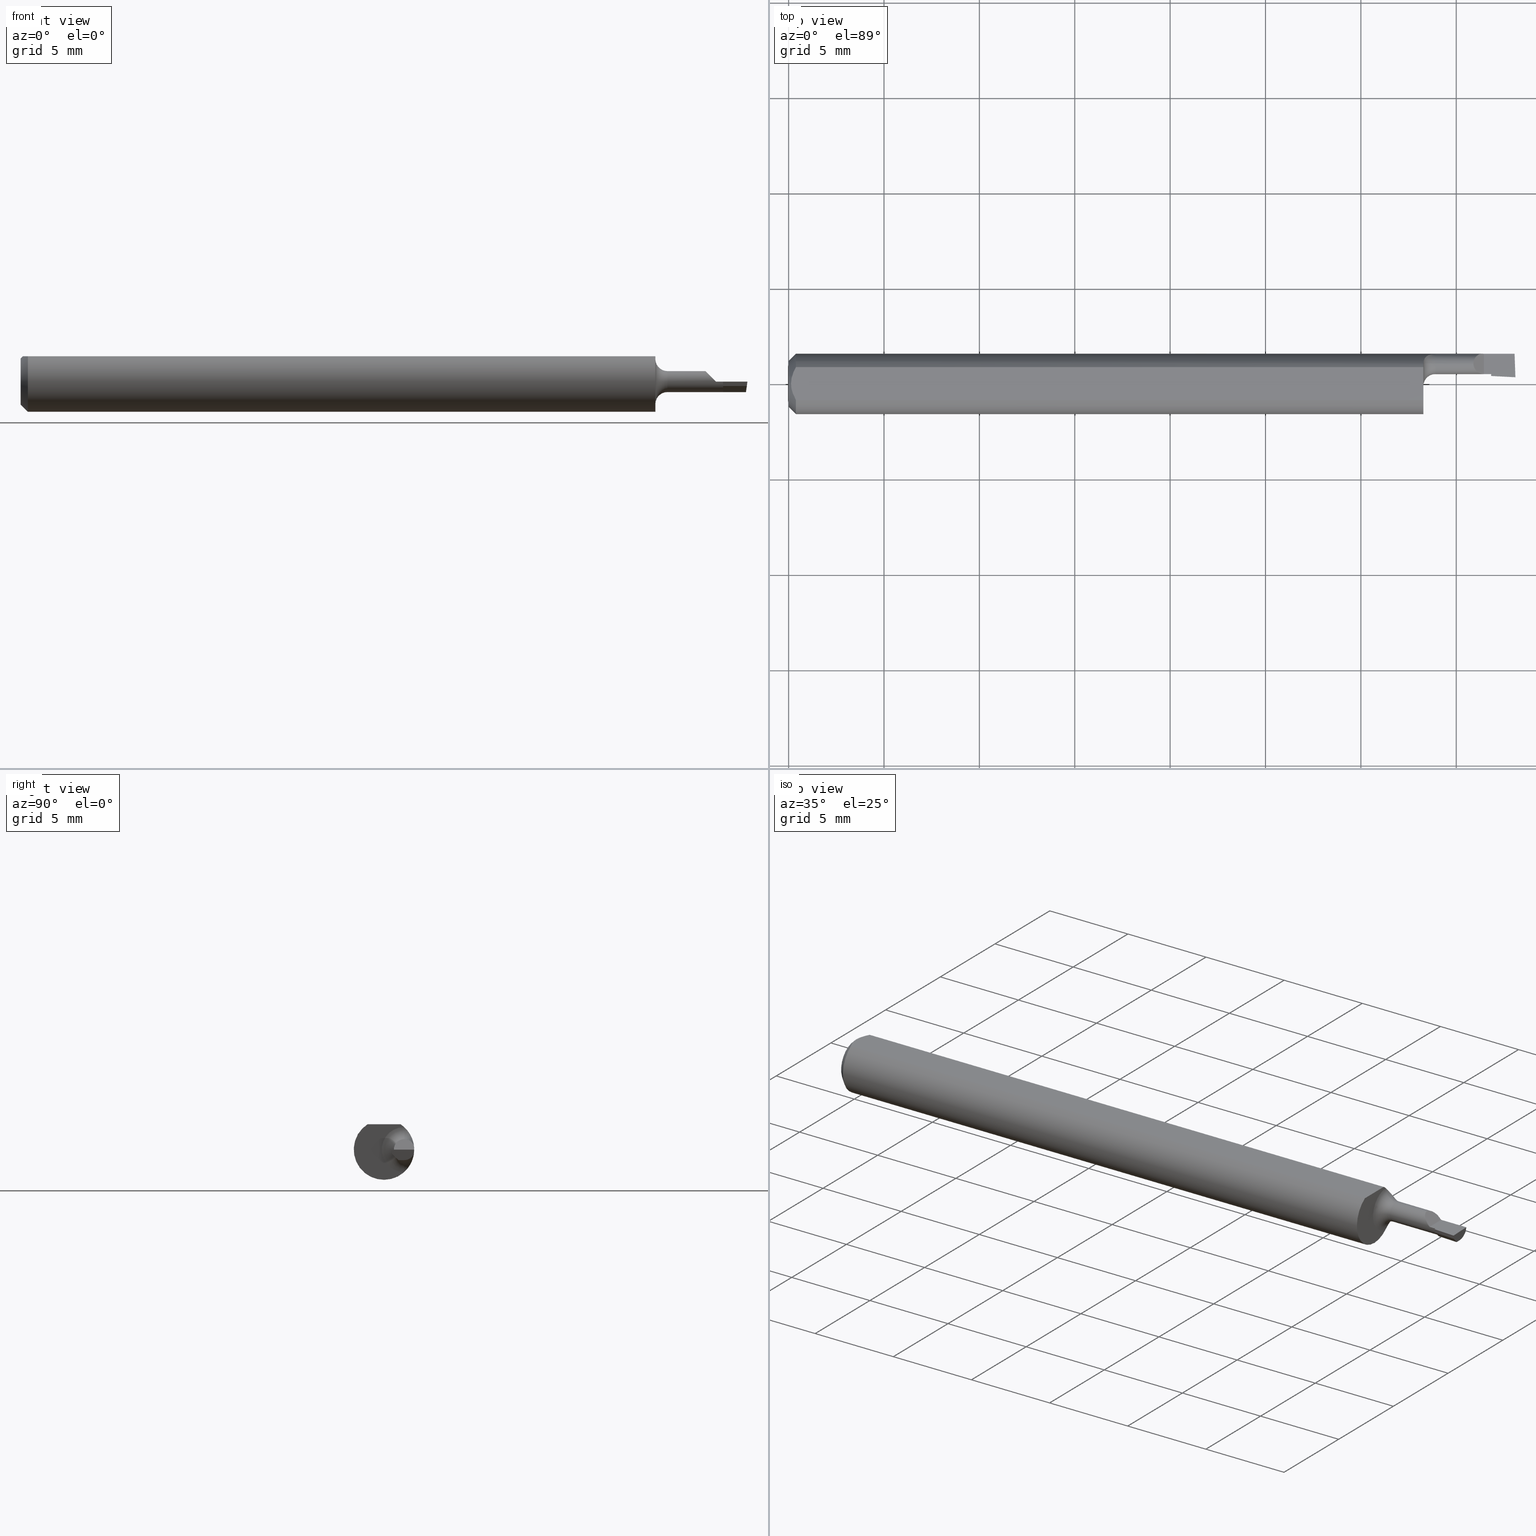
[diagram: canonical four-view strip — front | top / right | iso, engineering-drawing reading convention]
A machine part, canonical four-view strip (front | top / right | iso — engineering-drawing reading convention). The complete STEP part file that produces these views, byte-faithful:
ISO-10303-21;
HEADER;
FILE_DESCRIPTION (( 'STEP AP203' ),
    '1' );
FILE_NAME ('211794-LHB050150.STEP',
    '2024-08-22T18:03:58',
    ( '' ),
    ( '' ),
    'SwSTEP 2.0',
    'SolidWorks 2024',
    '' );
FILE_SCHEMA (( 'CONFIG_CONTROL_DESIGN' ));
ENDSEC;

DATA;
#1 = CIRCLE ( 'NONE', #220, 0.06235000000000000264 ) ;
#2 = CALENDAR_DATE ( 2024, 22, 8 ) ;
#3 = ADVANCED_BREP_SHAPE_REPRESENTATION ( '211794-LHB050150', ( #75, #84 ), #8 ) ;
#4 = EDGE_LOOP ( 'NONE', ( #366, #368, #485, #257 ) ) ;
#5 = CARTESIAN_POINT ( 'NONE',  ( 1.428995348212944494, 0.06213295572546700951, 0.006004651787055668641 ) ) ;
#6 = PLANE ( 'NONE',  #663 ) ;
#7 = ORIENTED_EDGE ( 'NONE', *, *, #143, .T. ) ;
#8 =( GEOMETRIC_REPRESENTATION_CONTEXT ( 3 ) GLOBAL_UNCERTAINTY_ASSIGNED_CONTEXT ( ( #488 ) ) GLOBAL_UNIT_ASSIGNED_CONTEXT ( ( #311, #259, #207 ) ) REPRESENTATION_CONTEXT ( 'NONE', 'WORKASPACE' ) );
#9 = CARTESIAN_POINT ( 'NONE',  ( 0.000000000000000000, 0.000000000000000000, 0.000000000000000000 ) ) ;
#10 = DIRECTION ( 'NONE',  ( 0.000000000000000000, -1.000000000000000000, 0.000000000000000000 ) ) ;
#11 = CARTESIAN_POINT ( 'NONE',  ( 1.310074194741583486, 0.04526839251566672911, -0.04310279966243768524 ) ) ;
#12 = ORIENTED_EDGE ( 'NONE', *, *, #357, .F. ) ;
#13 = DATE_AND_TIME ( #540, #456 ) ;
#14 = DIRECTION ( 'NONE',  ( 0.000000000000000000, -0.3094005013232327128, 0.9509318218363145281 ) ) ;
#15 = AXIS2_PLACEMENT_3D ( 'NONE', #251, #671, #506 ) ;
#16 = CARTESIAN_POINT ( 'NONE',  ( 1.321164219611749013, 0.05951808255707899398, -0.01885829980402606298 ) ) ;
#17 = CARTESIAN_POINT ( 'NONE',  ( 1.318668118509243703, 0.05835572319906699723, 0.02229702727151929020 ) ) ;
#18 = PRODUCT_RELATED_PRODUCT_CATEGORY ( 'detail', '', ( #272 ) ) ;
#19 = COORDINATED_UNIVERSAL_TIME_OFFSET ( 8, 0, .BEHIND. ) ;
#20 = CARTESIAN_POINT ( 'NONE',  ( 1.392500000000000071, 0.06169999999999997708, -0.008979560122856901014 ) ) ;
#21 = DIRECTION ( 'NONE',  ( -1.149214901180880201E-16, 0.000000000000000000, -1.000000000000000000 ) ) ;
#22 = CYLINDRICAL_SURFACE ( 'NONE', #200, 0.06235000000000000264 ) ;
#23 = ADVANCED_FACE ( 'NONE', ( #72 ), #22, .T. ) ;
#24 = DIRECTION ( 'NONE',  ( 0.1132713310799982886, 0.000000000000000000, 0.9935640923238748812 ) ) ;
#25 = CARTESIAN_POINT ( 'NONE',  ( 1.312870761441107037, 0.05308346109616995934, -0.03297691048371721029 ) ) ;
#26 = ORIENTED_EDGE ( 'NONE', *, *, #288, .F. ) ;
#27 = ADVANCED_FACE ( 'NONE', ( #282 ), #500, .F. ) ;
#28 = DIRECTION ( 'NONE',  ( 1.000000000000000000, 0.000000000000000000, 0.000000000000000000 ) ) ;
#29 = DIRECTION ( 'NONE',  ( -1.000000000000000000, -0.000000000000000000, -0.000000000000000000 ) ) ;
#30 = DIRECTION ( 'NONE',  ( 0.000000000000000000, 0.000000000000000000, 1.000000000000000000 ) ) ;
#31 = CARTESIAN_POINT ( 'NONE',  ( 0.01500000000000000465, 0.000000000000000000, 0.000000000000000000 ) ) ;
#32 = CARTESIAN_POINT ( 'NONE',  ( 0.000000000000000000, 0.04200000000000000955, 0.000000000000000000 ) ) ;
#33 = CARTESIAN_POINT ( 'NONE',  ( 1.981042333644269815E-32, 0.06234999999999999570, 1.723822351771319809E-16 ) ) ;
#34 = DIRECTION ( 'NONE',  ( 1.000000000000000000, 0.000000000000000000, 0.000000000000000000 ) ) ;
#35 = EDGE_CURVE ( 'NONE', #374, #632, #127, .T. ) ;
#36 = DIRECTION ( 'NONE',  ( -1.000000000000000000, -0.000000000000000000, -0.000000000000000000 ) ) ;
#37 = AXIS2_PLACEMENT_3D ( 'NONE', #532, #267, #474 ) ;
#38 = DIRECTION ( 'NONE',  ( -0.000000000000000000, 1.000000000000000000, -9.469800310816217580E-17 ) ) ;
#39 = CARTESIAN_POINT ( 'NONE',  ( 0.000000000000000000, 0.000000000000000000, 0.000000000000000000 ) ) ;
#40 = ORIENTED_EDGE ( 'NONE', *, *, #174, .T. ) ;
#41 = CARTESIAN_POINT ( 'NONE',  ( 1.450000000000000178, 0.01554346629494113806, 0.002952067235766412095 ) ) ;
#42 = LOCAL_TIME ( 11, 3, 58.00000000000000000, #19 ) ;
#43 = CARTESIAN_POINT ( 'NONE',  ( 1.413349999999999662, 0.02931772362537750365, 0.02165000000000001992 ) ) ;
#44 = ORIENTED_EDGE ( 'NONE', *, *, #81, .F. ) ;
#45 = ADVANCED_FACE ( 'NONE', ( #549 ), #287, .T. ) ;
#46 = DIRECTION ( 'NONE',  ( -1.000000000000000000, -0.000000000000000000, -0.000000000000000000 ) ) ;
#47 = ORIENTED_EDGE ( 'NONE', *, *, #511, .F. ) ;
#48 = ORIENTED_EDGE ( 'NONE', *, *, #299, .F. ) ;
#49 = EDGE_CURVE ( 'NONE', #519, #386, #185, .T. ) ;
#50 = ORIENTED_EDGE ( 'NONE', *, *, #416, .F. ) ;
#51 = PERSON_AND_ORGANIZATION_ROLE ( 'creator' ) ;
#52 = EDGE_CURVE ( 'NONE', #156, #183, #639, .T. ) ;
#53 = ORIENTED_EDGE ( 'NONE', *, *, #315, .F. ) ;
#54 = AXIS2_PLACEMENT_3D ( 'NONE', #169, #60, #375 ) ;
#55 = APPROVAL_DATE_TIME ( #13, #360 ) ;
#56 = ORIENTED_EDGE ( 'NONE', *, *, #446, .T. ) ;
#57 = DIRECTION ( 'NONE',  ( 0.04977445222139000730, 0.9497531263931373591, 0.3090169943749404569 ) ) ;
#58 = DIRECTION ( 'NONE',  ( 0.1044745908303220117, -0.7064477862276269393, 0.7000118464747019376 ) ) ;
#59 = EDGE_LOOP ( 'NONE', ( #97, #190, #404 ) ) ;
#60 = DIRECTION ( 'NONE',  ( -1.000000000000000000, -0.000000000000000000, -0.000000000000000000 ) ) ;
#61 = CARTESIAN_POINT ( 'NONE',  ( 1.450000000000000178, 0.02034999999999999656, 1.723822351771319809E-16 ) ) ;
#62 = CARTESIAN_POINT ( 'NONE',  ( 1.310141552243445640, 0.04851859531340434878, 0.04014048412325041393 ) ) ;
#63 = SHAPE_DEFINITION_REPRESENTATION ( #155, #3 ) ;
#64 = FACE_OUTER_BOUND ( 'NONE', #246, .T. ) ;
#65 = VECTOR ( 'NONE', #384, 39.37007874015748143 ) ;
#66 = VECTOR ( 'NONE', #58, 39.37007874015748854 ) ;
#67 = DIRECTION ( 'NONE',  ( -1.000000000000000000, 0.000000000000000000, 1.149214901180880201E-16 ) ) ;
#68 = EDGE_CURVE ( 'NONE', #163, #537, #308, .T. ) ;
#69 = CARTESIAN_POINT ( 'NONE',  ( 1.321137345355671844, 0.05951103980767496332, 0.01888626235242490611 ) ) ;
#70 = DIRECTION ( 'NONE',  ( 0.03489949670250593050, -0.9993908270190955401, 9.500867725976593892E-17 ) ) ;
#71 = CARTESIAN_POINT ( 'NONE',  ( 1.435000000000000053, 0.02034999999999996187, 7.469896857675718968E-18 ) ) ;
#72 = FACE_OUTER_BOUND ( 'NONE', #454, .T. ) ;
#73 = DIRECTION ( 'NONE',  ( -0.000000000000000000, 0.000000000000000000, 1.000000000000000000 ) ) ;
#74 = DIRECTION ( 'NONE',  ( 0.000000000000000000, 0.000000000000000000, -1.000000000000000000 ) ) ;
#75 = MANIFOLD_SOLID_BREP ( 'Extrude7', #608 ) ;
#76 = DIRECTION ( 'NONE',  ( 0.000000000000000000, -1.000000000000000000, 9.469800310816217580E-17 ) ) ;
#77 = DIRECTION ( 'NONE',  ( 0.000000000000000000, 0.000000000000000000, 1.000000000000000000 ) ) ;
#78 = AXIS2_PLACEMENT_3D ( 'NONE', #618, #667, #448 ) ;
#79 = DIRECTION ( 'NONE',  ( -1.000000000000000000, -0.000000000000000000, -0.000000000000000000 ) ) ;
#80 = FACE_OUTER_BOUND ( 'NONE', #167, .T. ) ;
#81 = EDGE_CURVE ( 'NONE', #250, #493, #1, .T. ) ;
#82 = CARTESIAN_POINT ( 'NONE',  ( 1.413349999999999884, 0.04200000000000000955, 0.02165000000000001992 ) ) ;
#83 = CARTESIAN_POINT ( 'NONE',  ( 1.450000000000000178, 0.01650396741785253862, 1.723411917878041112E-16 ) ) ;
#84 = AXIS2_PLACEMENT_3D ( 'NONE', #9, #481, #378 ) ;
#85 = CARTESIAN_POINT ( 'NONE',  ( 1.513791672468667526, 0.01316078752701859214, -1.584959551319857884E-18 ) ) ;
#86 = CC_DESIGN_PERSON_AND_ORGANIZATION_ASSIGNMENT ( #118, #476, ( #296 ) ) ;
#87 = VERTEX_POINT ( 'NONE', #88 ) ;
#88 = CARTESIAN_POINT ( 'NONE',  ( 0.004999999999989933504, 7.898418140378181697E-16, 0.05235000000000000070 ) ) ;
#89 = AXIS2_PLACEMENT_3D ( 'NONE', #293, #184, #73 ) ;
#90 = CARTESIAN_POINT ( 'NONE',  ( 0.000000000000000000, 0.04200000000000000955, 0.000000000000000000 ) ) ;
#91 = CARTESIAN_POINT ( 'NONE',  ( 1.509203793955957718, -0.2496785964328144536, -1.057713716158484612E-18 ) ) ;
#92 = DIRECTION ( 'NONE',  ( 0.000000000000000000, -0.7075914797155321567, 0.7066217501846258076 ) ) ;
#93 = EDGE_CURVE ( 'NONE', #159, #548, #514, .T. ) ;
#94 = ORIENTED_EDGE ( 'NONE', *, *, #236, .F. ) ;
#95 = DIRECTION ( 'NONE',  ( -1.000000000000000000, -0.000000000000000000, -0.000000000000000000 ) ) ;
#96 = CARTESIAN_POINT ( 'NONE',  ( 1.499345611525104038, 0.02951352406363091929, -0.02165000000000000951 ) ) ;
#97 = ORIENTED_EDGE ( 'NONE', *, *, #665, .F. ) ;
#98 = LENGTH_MEASURE_WITH_UNIT ( LENGTH_MEASURE( 0.02539999999999999897 ), #314 );
#99 = CARTESIAN_POINT ( 'NONE',  ( 0.01500000000000000465, 0.000000000000000000, -0.06235000000000000264 ) ) ;
#100 = VECTOR ( 'NONE', #46, 39.37007874015748143 ) ;
#101 = CARTESIAN_POINT ( 'NONE',  ( 1.310000000000000053, -0.03386738844380023788, 0.05235000000000000070 ) ) ;
#102 = EDGE_CURVE ( 'NONE', #680, #205, #295, .T. ) ;
#103 = EDGE_LOOP ( 'NONE', ( #449, #602, #152, #338 ) ) ;
#104 = ORIENTED_EDGE ( 'NONE', *, *, #178, .T. ) ;
#105 = APPROVAL_STATUS ( 'not_yet_approved' ) ;
#106 = ORIENTED_EDGE ( 'NONE', *, *, #52, .F. ) ;
#107 =( BOUNDED_CURVE ( )  B_SPLINE_CURVE ( 3, ( #240, #189, #400, #611 ),
 .UNSPECIFIED., .F., .T. ) 
 B_SPLINE_CURVE_WITH_KNOTS ( ( 4, 4 ),
 ( 5.437303047992022798, 6.580420033176219263 ),
 .UNSPECIFIED. ) 
 CURVE ( )  GEOMETRIC_REPRESENTATION_ITEM ( )  RATIONAL_B_SPLINE_CURVE ( ( 1.000000000000000000, 0.8940392936708234650, 0.8940392936708234650, 1.000000000000000000 ) ) 
 REPRESENTATION_ITEM ( '' )  );
#108 = AXIS2_PLACEMENT_3D ( 'NONE', #494, #28, #562 ) ;
#109 = APPROVAL_ROLE ( '' ) ;
#110 = FACE_OUTER_BOUND ( 'NONE', #103, .T. ) ;
#111 = CARTESIAN_POINT ( 'NONE',  ( 1.500000000000000222, -0.2500000000000000555, 0.000000000000000000 ) ) ;
#112 = ORIENTED_EDGE ( 'NONE', *, *, #151, .T. ) ;
#113 = EDGE_CURVE ( 'NONE', #435, #418, #453, .T. ) ;
#114 = PERSON_AND_ORGANIZATION ( #160, #633 ) ;
#115 = PLANE ( 'NONE',  #335 ) ;
#116 = B_SPLINE_CURVE_WITH_KNOTS ( 'NONE', 3,
 ( #541, #280, #587, #546, #275, #165 ),
 .UNSPECIFIED., .F., .F.,
 ( 4, 2, 4 ),
 ( 0.003037199019464981685, 0.003488061124369675782, 0.003938923229274369879 ),
 .UNSPECIFIED. ) ;
#117 = VERTEX_POINT ( 'NONE', #309 ) ;
#118 = PERSON_AND_ORGANIZATION ( #160, #633 ) ;
#119 = DIRECTION ( 'NONE',  ( 0.1183632232296001896, -0.3128294419703177009, 0.9424053732992185850 ) ) ;
#120 = EDGE_CURVE ( 'NONE', #183, #156, #462, .T. ) ;
#121 = CARTESIAN_POINT ( 'NONE',  ( 1.310000000000000053, 0.000000000000000000, 0.000000000000000000 ) ) ;
#122 = PERSON_AND_ORGANIZATION_ROLE ( 'design_owner' ) ;
#123 = CARTESIAN_POINT ( 'NONE',  ( 1.496554145520181400, 0.04187966811000813638, -0.02165000000000000951 ) ) ;
#124 = VECTOR ( 'NONE', #10, 39.37007874015748143 ) ;
#125 = ORIENTED_EDGE ( 'NONE', *, *, #507, .T. ) ;
#126 = B_SPLINE_CURVE_WITH_KNOTS ( 'NONE', 3,
 ( #613, #339, #343, #648, #286, #391 ),
 .UNSPECIFIED., .F., .F.,
 ( 4, 2, 4 ),
 ( 0.002133667072902290657, 0.002585433046183636171, 0.003037199019464981685 ),
 .UNSPECIFIED. ) ;
#127 = LINE ( 'NONE', #340, #582 ) ;
#128 = FACE_OUTER_BOUND ( 'NONE', #260, .T. ) ;
#129 = ORIENTED_EDGE ( 'NONE', *, *, #683, .T. ) ;
#130 = CARTESIAN_POINT ( 'NONE',  ( 1.392500000000000071, 0.06169999999999997708, 0.008979560122856901014 ) ) ;
#131 = DIRECTION ( 'NONE',  ( 0.000000000000000000, 0.000000000000000000, -1.000000000000000000 ) ) ;
#132 = VECTOR ( 'NONE', #464, 39.37007874015748143 ) ;
#133 = CIRCLE ( 'NONE', #264, 0.02165000000000002339 ) ;
#134 = DIRECTION ( 'NONE',  ( -1.000000000000000000, -0.000000000000000000, -0.000000000000000000 ) ) ;
#135 = DIRECTION ( 'NONE',  ( -1.000000000000000000, -0.000000000000000000, -0.000000000000000000 ) ) ;
#136 = CC_DESIGN_DATE_AND_TIME_ASSIGNMENT ( #318, #645, ( #158 ) ) ;
#137 = CARTESIAN_POINT ( 'NONE',  ( 0.000000000000000000, 6.717187693324806899E-18, 0.04734999999999965625 ) ) ;
#138 = EDGE_LOOP ( 'NONE', ( #206, #181, #94, #612, #358 ) ) ;
#139 = CARTESIAN_POINT ( 'NONE',  ( 1.413349999999999662, 0.05073296928954761087, 0.02165000000000001992 ) ) ;
#140 = EDGE_CURVE ( 'NONE', #163, #682, #387, .T. ) ;
#141 = CARTESIAN_POINT ( 'NONE',  ( 1.413349999999999884, 0.04200000000000000955, 0.02165000000000001992 ) ) ;
#142 = CARTESIAN_POINT ( 'NONE',  ( 1.498076678785729143, 0.02223295781096510521, -0.01431300070202730368 ) ) ;
#143 = EDGE_CURVE ( 'NONE', #374, #589, #439, .T. ) ;
#144 = CARTESIAN_POINT ( 'NONE',  ( 0.000000000000000000, 0.000000000000000000, -0.04734999999999965625 ) ) ;
#145 = ORIENTED_EDGE ( 'NONE', *, *, #591, .F. ) ;
#146 = CYLINDRICAL_SURFACE ( 'NONE', #219, 0.02165000000000001992 ) ;
#147 = ORIENTED_EDGE ( 'NONE', *, *, #591, .T. ) ;
#148 = CARTESIAN_POINT ( 'NONE',  ( 1.334999999999999742, 0.04200000000000000955, 0.02165000000000002339 ) ) ;
#149 = CARTESIAN_POINT ( 'NONE',  ( 0.01500000000000000465, 0.03386738844375223462, 0.05234999999999997988 ) ) ;
#150 = ORIENTED_EDGE ( 'NONE', *, *, #492, .T. ) ;
#151 = EDGE_CURVE ( 'NONE', #632, #682, #399, .T. ) ;
#152 = ORIENTED_EDGE ( 'NONE', *, *, #113, .F. ) ;
#153 = VECTOR ( 'NONE', #70, 39.37007874015748143 ) ;
#154 = AXIS2_PLACEMENT_3D ( 'NONE', #90, #352, #305 ) ;
#155 = PRODUCT_DEFINITION_SHAPE ( 'NONE', 'NONE',  #334 ) ;
#156 = VERTEX_POINT ( 'NONE', #144 ) ;
#157 = PERSON_AND_ORGANIZATION_ROLE ( 'design_supplier' ) ;
#158 = SECURITY_CLASSIFICATION ( '', '', #213 ) ;
#159 = VERTEX_POINT ( 'NONE', #82 ) ;
#160 = PERSON ( 'UNSPECIFIED', 'UNSPECIFIED', 'UNSPECIFIED', ('UNSPECIFIED'), ('UNSPECIFIED'), ('UNSPECIFIED') ) ;
#161 = DIRECTION ( 'NONE',  ( 0.7071067811865395791, 8.659560562355031466E-17, 0.7071067811865555663 ) ) ;
#162 = CARTESIAN_POINT ( 'NONE',  ( 1.310006460274302675, 0.04200000000015002843, -0.04608169376213723523 ) ) ;
#163 = VERTEX_POINT ( 'NONE', #679 ) ;
#164 = AXIS2_PLACEMENT_3D ( 'NONE', #253, #673, #199 ) ;
#165 = CARTESIAN_POINT ( 'NONE',  ( 0.01500000000000000465, 0.03386738844375223462, 0.05234999999999997988 ) ) ;
#166 = DIRECTION ( 'NONE',  ( -1.000000000000000000, -0.000000000000000000, -0.000000000000000000 ) ) ;
#167 = EDGE_LOOP ( 'NONE', ( #672, #44, #622, #47 ) ) ;
#168 = ADVANCED_FACE ( 'NONE', ( #354 ), #409, .F. ) ;
#169 = CARTESIAN_POINT ( 'NONE',  ( 0.01500000000000000465, 0.000000000000000000, 0.000000000000000000 ) ) ;
#170 = CARTESIAN_POINT ( 'NONE',  ( 1.314503367413919488, 0.05514048125192552718, -0.02935827858479103658 ) ) ;
#171 = CARTESIAN_POINT ( 'NONE',  ( 1.330731329014794184, 0.06154711322920821542, 0.01005805410694270499 ) ) ;
#172 = APPROVAL_PERSON_ORGANIZATION ( #432, #504, #109 ) ;
#173 = MECHANICAL_CONTEXT ( 'NONE', #513, 'mechanical' ) ;
#174 = EDGE_CURVE ( 'NONE', #682, #537, #133, .T. ) ;
#175 = CARTESIAN_POINT ( 'NONE',  ( 0.000000000000000000, 0.04200000000000000955, 0.02165000000000001992 ) ) ;
#176 = FACE_OUTER_BOUND ( 'NONE', #392, .T. ) ;
#177 = EDGE_LOOP ( 'NONE', ( #616, #252, #40 ) ) ;
#178 = EDGE_CURVE ( 'NONE', #684, #117, #615, .T. ) ;
#179 = CARTESIAN_POINT ( 'NONE',  ( 1.309999999999991172, 0.04158309226468338143, -0.04645910121876678511 ) ) ;
#180 = CIRCLE ( 'NONE', #620, 0.06235000000000000264 ) ;
#181 = ORIENTED_EDGE ( 'NONE', *, *, #341, .T. ) ;
#182 = DIRECTION ( 'NONE',  ( 1.000000000000000000, 0.000000000000000000, 0.000000000000000000 ) ) ;
#183 = VERTEX_POINT ( 'NONE', #137 ) ;
#184 = DIRECTION ( 'NONE',  ( -1.000000000000000000, 0.000000000000000000, -0.000000000000000000 ) ) ;
#185 =( BOUNDED_CURVE ( )  B_SPLINE_CURVE ( 3, ( #659, #544, #186, #394 ),
 .UNSPECIFIED., .F., .T. ) 
 B_SPLINE_CURVE_WITH_KNOTS ( ( 4, 4 ),
 ( 5.009623706381322705, 5.154144874936619658 ),
 .UNSPECIFIED. ) 
 CURVE ( )  GEOMETRIC_REPRESENTATION_ITEM ( )  RATIONAL_B_SPLINE_CURVE ( ( 1.000000000000000000, 0.9982602265499040950, 0.9982602265499040950, 1.000000000000000000 ) ) 
 REPRESENTATION_ITEM ( '' )  );
#186 = CARTESIAN_POINT ( 'NONE',  ( 1.497630533948310916, 0.06213295572546700257, -0.006004651787055691192 ) ) ;
#187 = DIRECTION ( 'NONE',  ( 0.000000000000000000, 0.000000000000000000, 1.000000000000000000 ) ) ;
#188 = AXIS2_PLACEMENT_3D ( 'NONE', #32, #29, #654 ) ;
#189 = CARTESIAN_POINT ( 'NONE',  ( 1.496527055185697952, 0.05807791118768795835, -0.01692595712073620418 ) ) ;
#190 = ORIENTED_EDGE ( 'NONE', *, *, #554, .F. ) ;
#191 = EDGE_CURVE ( 'NONE', #205, #197, #350, .T. ) ;
#192 = PLANE ( 'NONE',  #407 ) ;
#193 = DIRECTION ( 'NONE',  ( -1.000000000000000000, -0.000000000000000000, -0.000000000000000000 ) ) ;
#194 = VERTEX_POINT ( 'NONE', #517 ) ;
#195 = FACE_OUTER_BOUND ( 'NONE', #469, .T. ) ;
#196 = CARTESIAN_POINT ( 'NONE',  ( 1.435000000000000053, 0.02034999999999996187, 7.469896857675718968E-18 ) ) ;
#197 = VERTEX_POINT ( 'NONE', #510 ) ;
#198 = AXIS2_PLACEMENT_3D ( 'NONE', #31, #658, #131 ) ;
#199 = DIRECTION ( 'NONE',  ( 0.000000000000000000, -0.7075914797155321567, 0.7066217501846258076 ) ) ;
#200 = AXIS2_PLACEMENT_3D ( 'NONE', #285, #79, #231 ) ;
#201 = ORIENTED_EDGE ( 'NONE', *, *, #325, .F. ) ;
#202 = DIRECTION ( 'NONE',  ( -1.000000000000000000, -0.000000000000000000, -0.000000000000000000 ) ) ;
#203 = CARTESIAN_POINT ( 'NONE',  ( 1.310000000000000053, 0.04137261904761901921, 0.04664578108618818580 ) ) ;
#204 = ADVANCED_FACE ( 'NONE', ( #552 ), #249, .F. ) ;
#205 = VERTEX_POINT ( 'NONE', #621 ) ;
#206 = ORIENTED_EDGE ( 'NONE', *, *, #178, .F. ) ;
#207 =( NAMED_UNIT ( * ) SI_UNIT ( $, .STERADIAN. ) SOLID_ANGLE_UNIT ( ) );
#208 = CC_DESIGN_PERSON_AND_ORGANIZATION_ASSIGNMENT ( #580, #51, ( #334 ) ) ;
#209 = ORIENTED_EDGE ( 'NONE', *, *, #431, .T. ) ;
#210 = VECTOR ( 'NONE', #442, 39.37007874015748143 ) ;
#211 = APPROVAL_STATUS ( 'not_yet_approved' ) ;
#212 = ORIENTED_EDGE ( 'NONE', *, *, #578, .F. ) ;
#213 = SECURITY_CLASSIFICATION_LEVEL ( 'unclassified' ) ;
#214 = EDGE_CURVE ( 'NONE', #493, #163, #273, .T. ) ;
#215 = LINE ( 'NONE', #227, #321 ) ;
#216 = ORIENTED_EDGE ( 'NONE', *, *, #389, .F. ) ;
#217 = CARTESIAN_POINT ( 'NONE',  ( 1.435000000000000053, 0.06234999999999984999, 7.469896857675718968E-18 ) ) ;
#218 = ORIENTED_EDGE ( 'NONE', *, *, #35, .F. ) ;
#219 = AXIS2_PLACEMENT_3D ( 'NONE', #677, #202, #364 ) ;
#220 = AXIS2_PLACEMENT_3D ( 'NONE', #121, #303, #345 ) ;
#221 = APPROVAL_STATUS ( 'not_yet_approved' ) ;
#222 = LINE ( 'NONE', #596, #509 ) ;
#223 = CARTESIAN_POINT ( 'NONE',  ( 1.435000000000000053, -0.2500000000000000555, 7.469896857675718968E-18 ) ) ;
#224 = CARTESIAN_POINT ( 'NONE',  ( 1.325584872132278935, 0.06074967455721212717, 0.01413090964346032201 ) ) ;
#225 = EDGE_CURVE ( 'NONE', #386, #194, #107, .T. ) ;
#226 = APPROVAL_ROLE ( '' ) ;
#227 = CARTESIAN_POINT ( 'NONE',  ( 1.310000000000000053, 0.1123499999999999915, 0.05234999999999998682 ) ) ;
#228 = CARTESIAN_POINT ( 'NONE',  ( 1.310670077248454524, 0.04815584287052730034, -0.03982895007941800181 ) ) ;
#229 = ORIENTED_EDGE ( 'NONE', *, *, #288, .T. ) ;
#230 = LINE ( 'NONE', #283, #243 ) ;
#231 = DIRECTION ( 'NONE',  ( 0.000000000000000000, 0.000000000000000000, 1.000000000000000000 ) ) ;
#232 = CARTESIAN_POINT ( 'NONE',  ( 1.500000000000000222, 0.04200000000000000955, -0.02165000000000000951 ) ) ;
#233 = CONICAL_SURFACE ( 'NONE', #254, 0.06235000000000000264, 0.7853981633974596033 ) ;
#234 = DIRECTION ( 'NONE',  ( -1.000000000000000000, -0.000000000000000000, -0.000000000000000000 ) ) ;
#235 = CARTESIAN_POINT ( 'NONE',  ( 1.981042333644269815E-32, 0.02034999999999999309, 1.723822351771319809E-16 ) ) ;
#236 = EDGE_CURVE ( 'NONE', #371, #250, #292, .T. ) ;
#237 = VERTEX_POINT ( 'NONE', #429 ) ;
#238 = CC_DESIGN_APPROVAL ( #605, ( #296 ) ) ;
#239 = LINE ( 'NONE', #235, #210 ) ;
#240 = CARTESIAN_POINT ( 'NONE',  ( 1.497306498500703631, 0.06169999999999997708, -0.008979560122856901014 ) ) ;
#241 = ADVANCED_FACE ( 'NONE', ( #110 ), #115, .F. ) ;
#242 = EDGE_LOOP ( 'NONE', ( #472, #651, #129, #48, #559 ) ) ;
#243 = VECTOR ( 'NONE', #436, 39.37007874015748143 ) ;
#244 = TOROIDAL_SURFACE ( 'NONE', #37, 0.04665000000000002478, 0.02499999999999993894 ) ;
#245 = DIRECTION ( 'NONE',  ( 0.000000000000000000, 0.000000000000000000, 1.000000000000000000 ) ) ;
#246 = EDGE_LOOP ( 'NONE', ( #362, #201, #355, #12, #377, #479 ) ) ;
#247 = CARTESIAN_POINT ( 'NONE',  ( 1.413349999999999884, 0.04200000000000000955, 0.02165000000000001992 ) ) ;
#248 = DIRECTION ( 'NONE',  ( -0.000000000000000000, 1.000000000000000000, 1.224646799147353207E-16 ) ) ;
#249 = PLANE ( 'NONE',  #164 ) ;
#250 = VERTEX_POINT ( 'NONE', #270 ) ;
#251 = CARTESIAN_POINT ( 'NONE',  ( 1.334999999999999742, 0.04200000000000000955, 0.04665000000000002478 ) ) ;
#252 = ORIENTED_EDGE ( 'NONE', *, *, #140, .T. ) ;
#253 = CARTESIAN_POINT ( 'NONE',  ( 1.445230175387622662, 0.01968223371965590121, -0.008999999999999999320 ) ) ;
#254 = AXIS2_PLACEMENT_3D ( 'NONE', #536, #592, #478 ) ;
#255 = ORIENTED_EDGE ( 'NONE', *, *, #628, .F. ) ;
#256 = FACE_OUTER_BOUND ( 'NONE', #59, .T. ) ;
#257 = ORIENTED_EDGE ( 'NONE', *, *, #174, .F. ) ;
#258 = CC_DESIGN_PERSON_AND_ORGANIZATION_ASSIGNMENT ( #372, #369, ( #158 ) ) ;
#259 =( NAMED_UNIT ( * ) PLANE_ANGLE_UNIT ( ) SI_UNIT ( $, .RADIAN. ) );
#260 = EDGE_LOOP ( 'NONE', ( #145, #575, #333, #528 ) ) ;
#261 = ADVANCED_FACE ( 'NONE', ( #64 ), #423, .F. ) ;
#262 = DATE_AND_TIME ( #2, #42 ) ;
#263 = ORIENTED_EDGE ( 'NONE', *, *, #140, .F. ) ;
#264 = AXIS2_PLACEMENT_3D ( 'NONE', #564, #403, #245 ) ;
#265 = EDGE_CURVE ( 'NONE', #87, #371, #116, .T. ) ;
#266 = APPROVAL_DATE_TIME ( #262, #504 ) ;
#267 = DIRECTION ( 'NONE',  ( -1.000000000000000000, -0.000000000000000000, -0.000000000000000000 ) ) ;
#268 = EDGE_LOOP ( 'NONE', ( #626, #533, #112, #263, #664, #255 ) ) ;
#269 = APPLICATION_PROTOCOL_DEFINITION ( 'international standard', 'config_control_design', 1994, #656 ) ;
#270 = CARTESIAN_POINT ( 'NONE',  ( 1.310000000000000053, 0.03386738844375224156, 0.05235000000000000070 ) ) ;
#271 = LINE ( 'NONE', #223, #545 ) ;
#272 = PRODUCT ( '211794-LHB050150', '211794-LHB050150', '', ( #173 ) ) ;
#273 = B_SPLINE_CURVE_WITH_KNOTS ( 'NONE', 3,
 ( #203, #412, #348, #624 ),
 .UNSPECIFIED., .F., .F.,
 ( 4, 4 ),
 ( 4.582666268724743526E-07, 2.170104865268368278E-05 ),
 .UNSPECIFIED. ) ;
#274 = VERTEX_POINT ( 'NONE', #581 ) ;
#275 = CARTESIAN_POINT ( 'NONE',  ( 0.01218518006020414754, 0.02868529347538064517, 0.05234999999999998682 ) ) ;
#276 = ADVANCED_FACE ( 'NONE', ( #487 ), #233, .T. ) ;
#277 = CARTESIAN_POINT ( 'NONE',  ( 1.312421881751719255, 0.05353913003532599635, 0.03288138494637243836 ) ) ;
#278 = VECTOR ( 'NONE', #538, 39.37007874015748143 ) ;
#279 = VECTOR ( 'NONE', #166, 39.37007874015748143 ) ;
#280 = CARTESIAN_POINT ( 'NONE',  ( 0.004999999999999268051, 0.005945714695019509340, 0.05235000000000000070 ) ) ;
#281 = FACE_OUTER_BOUND ( 'NONE', #324, .T. ) ;
#282 = FACE_OUTER_BOUND ( 'NONE', #242, .T. ) ;
#283 = CARTESIAN_POINT ( 'NONE',  ( 1.445230175387622662, 0.01968223371965590121, -0.008999999999999999320 ) ) ;
#284 = CARTESIAN_POINT ( 'NONE',  ( 1.325565359643935626, 0.06074446073968786663, -0.01415138756931525257 ) ) ;
#285 = CARTESIAN_POINT ( 'NONE',  ( 0.000000000000000000, 0.000000000000000000, 0.000000000000000000 ) ) ;
#286 = CARTESIAN_POINT ( 'NONE',  ( 0.004999999999998882075, -0.005957634400466951113, 0.05235000000000000070 ) ) ;
#287 = CYLINDRICAL_SURFACE ( 'NONE', #188, 0.02165000000000001992 ) ;
#288 = EDGE_CURVE ( 'NONE', #386, #619, #482, .T. ) ;
#289 = CARTESIAN_POINT ( 'NONE',  ( 0.01500000000000000465, 0.000000000000000000, -0.06235000000000000264 ) ) ;
#290 = AXIS2_PLACEMENT_3D ( 'NONE', #459, #193, #463 ) ;
#291 = CARTESIAN_POINT ( 'NONE',  ( 1.334999999999999742, 0.04200000000000000955, -0.02165000000000002339 ) ) ;
#292 = LINE ( 'NONE', #298, #522 ) ;
#293 = CARTESIAN_POINT ( 'NONE',  ( 1.310000000000000053, -0.004650000000000023039, 0.000000000000000000 ) ) ;
#294 = EDGE_CURVE ( 'NONE', #410, #117, #662, .T. ) ;
#295 = LINE ( 'NONE', #96, #676 ) ;
#296 = PRODUCT_DEFINITION_FORMATION_WITH_SPECIFIED_SOURCE ( 'ANY', '', #272, .NOT_KNOWN. ) ;
#297 = FACE_OUTER_BOUND ( 'NONE', #574, .T. ) ;
#298 = CARTESIAN_POINT ( 'NONE',  ( 0.000000000000000000, 0.03386738844375223462, 0.05234999999999997988 ) ) ;
#299 = EDGE_CURVE ( 'NONE', #589, #435, #331, .T. ) ;
#300 = VERTEX_POINT ( 'NONE', #217 ) ;
#301 = PLANE ( 'NONE',  #89 ) ;
#302 = AXIS2_PLACEMENT_3D ( 'NONE', #451, #657, #187 ) ;
#303 = DIRECTION ( 'NONE',  ( -1.000000000000000000, -0.000000000000000000, -0.000000000000000000 ) ) ;
#304 = ORIENTED_EDGE ( 'NONE', *, *, #542, .T. ) ;
#305 = DIRECTION ( 'NONE',  ( 0.000000000000000000, 0.000000000000000000, 1.000000000000000000 ) ) ;
#306 = DIRECTION ( 'NONE',  ( 0.000000000000000000, -7.598598113218357399E-17, -1.000000000000000000 ) ) ;
#307 = ORIENTED_EDGE ( 'NONE', *, *, #603, .T. ) ;
#308 = B_SPLINE_CURVE_WITH_KNOTS ( 'NONE', 3,
 ( #539, #62, #277, #17, #69, #224, #430, #171, #382, #594 ),
 .UNSPECIFIED., .F., .F.,
 ( 4, 2, 2, 2, 4 ),
 ( 2.170104865268368278E-05, 0.0006888475183558680215, 0.001022420753207455187, 0.001189207370633255708, 0.001355993988059056229 ),
 .UNSPECIFIED. ) ;
#309 = CARTESIAN_POINT ( 'NONE',  ( 0.01500000000000185039, -0.03386738844380016850, 0.05235000000000000070 ) ) ;
#310 = ORIENTED_EDGE ( 'NONE', *, *, #35, .T. ) ;
#311 =( CONVERSION_BASED_UNIT ( 'INCH', #98 ) LENGTH_UNIT ( ) NAMED_UNIT ( #655 ) );
#312 = DIRECTION ( 'NONE',  ( 0.7071067811865395791, 0.000000000000000000, -0.7071067811865555663 ) ) ;
#313 = ORIENTED_EDGE ( 'NONE', *, *, #315, .T. ) ;
#314 =( LENGTH_UNIT ( ) NAMED_UNIT ( * ) SI_UNIT ( $, .METRE. ) );
#315 = EDGE_CURVE ( 'NONE', #183, #87, #222, .T. ) ;
#316 = ORIENTED_EDGE ( 'NONE', *, *, #236, .T. ) ;
#317 = ORIENTED_EDGE ( 'NONE', *, *, #554, .T. ) ;
#318 = DATE_AND_TIME ( #535, #518 ) ;
#319 = CARTESIAN_POINT ( 'NONE',  ( 1.500000000000000222, 0.04200000000000000955, -0.02165000000000000951 ) ) ;
#320 = ORIENTED_EDGE ( 'NONE', *, *, #446, .F. ) ;
#321 = VECTOR ( 'NONE', #433, 39.37007874015748143 ) ;
#322 = DATE_AND_TIME ( #595, #566 ) ;
#323 = LINE ( 'NONE', #643, #365 ) ;
#324 = EDGE_LOOP ( 'NONE', ( #674, #415, #50, #401, #209, #579 ) ) ;
#325 = EDGE_CURVE ( 'NONE', #644, #418, #323, .T. ) ;
#326 = CARTESIAN_POINT ( 'NONE',  ( 1.473758310345527622, 0.01296719845820266427, -0.2304607446100246093 ) ) ;
#327 =( BOUNDED_CURVE ( )  B_SPLINE_CURVE ( 3, ( #465, #5, #421, #635 ),
 .UNSPECIFIED., .F., .T. ) 
 B_SPLINE_CURVE_WITH_KNOTS ( ( 4, 4 ),
 ( 1.426275158239600271, 1.570796326794896558 ),
 .UNSPECIFIED. ) 
 CURVE ( )  GEOMETRIC_REPRESENTATION_ITEM ( )  RATIONAL_B_SPLINE_CURVE ( ( 1.000000000000000000, 0.9982602265499040950, 0.9982602265499040950, 1.000000000000000000 ) ) 
 REPRESENTATION_ITEM ( '' )  );
#328 = CARTESIAN_POINT ( 'NONE',  ( 1.327152351167834921, 0.06107065959994131127, -0.01263339011355613974 ) ) ;
#329 = ORIENTED_EDGE ( 'NONE', *, *, #120, .F. ) ;
#330 = COORDINATED_UNIVERSAL_TIME_OFFSET ( 8, 0, .BEHIND. ) ;
#331 = LINE ( 'NONE', #490, #124 ) ;
#332 = DESIGN_CONTEXT ( 'detailed design', #656, 'design' ) ;
#333 = ORIENTED_EDGE ( 'NONE', *, *, #102, .T. ) ;
#334 = PRODUCT_DEFINITION ( 'UNKNOWN', '', #296, #332 ) ;
#335 = AXIS2_PLACEMENT_3D ( 'NONE', #379, #57, #14 ) ;
#336 = AXIS2_PLACEMENT_3D ( 'NONE', #588, #373, #577 ) ;
#337 = LINE ( 'NONE', #123, #153 ) ;
#338 = ORIENTED_EDGE ( 'NONE', *, *, #683, .F. ) ;
#339 = CARTESIAN_POINT ( 'NONE',  ( 0.01216137397042176167, -0.02864146636719541034, 0.05235000000000000070 ) ) ;
#340 = CARTESIAN_POINT ( 'NONE',  ( 0.000000000000000000, 0.04200000000000000955, -0.02165000000000001992 ) ) ;
#341 = EDGE_CURVE ( 'NONE', #684, #250, #215, .T. ) ;
#342 = CARTESIAN_POINT ( 'NONE',  ( 1.450000000000000178, 0.006470388964151904676, 0.000000000000000000 ) ) ;
#343 = CARTESIAN_POINT ( 'NONE',  ( 0.009678036133109300596, -0.02325481837211496039, 0.05235000000000000070 ) ) ;
#344 = AXIS2_PLACEMENT_3D ( 'NONE', #661, #306, #520 ) ;
#345 = DIRECTION ( 'NONE',  ( 0.000000000000000000, 0.000000000000000000, 1.000000000000000000 ) ) ;
#346 = DIRECTION ( 'NONE',  ( 0.000000000000000000, 0.000000000000000000, 1.000000000000000000 ) ) ;
#347 = EDGE_CURVE ( 'NONE', #159, #682, #646, .T. ) ;
#348 = CARTESIAN_POINT ( 'NONE',  ( 1.310002158776226500, 0.04179243973303146953, 0.04627086934374565613 ) ) ;
#349 = DIRECTION ( 'NONE',  ( -0.000000000000000000, 9.469800310816217580E-17, 1.000000000000000000 ) ) ;
#350 = LINE ( 'NONE', #558, #572 ) ;
#351 = EDGE_LOOP ( 'NONE', ( #53, #106, #525, #489, #150 ) ) ;
#352 = DIRECTION ( 'NONE',  ( -1.000000000000000000, -0.000000000000000000, -0.000000000000000000 ) ) ;
#353 = VECTOR ( 'NONE', #38, 39.37007874015748143 ) ;
#354 = FACE_OUTER_BOUND ( 'NONE', #138, .T. ) ;
#355 = ORIENTED_EDGE ( 'NONE', *, *, #542, .F. ) ;
#356 = CARTESIAN_POINT ( 'NONE',  ( 1.422317723625377450, 0.02034999999999998616, 0.01268227637462250243 ) ) ;
#357 = EDGE_CURVE ( 'NONE', #194, #680, #337, .T. ) ;
#358 = ORIENTED_EDGE ( 'NONE', *, *, #492, .F. ) ;
#359 = LINE ( 'NONE', #41, #607 ) ;
#360 = APPROVAL ( #221, 'UNSPECIFIED' ) ;
#361 = CARTESIAN_POINT ( 'NONE',  ( 1.450000000000000178, 0.04200000000000000955, -0.02165000000000000951 ) ) ;
#362 = ORIENTED_EDGE ( 'NONE', *, *, #678, .F. ) ;
#363 = EDGE_CURVE ( 'NONE', #197, #644, #230, .T. ) ;
#364 = DIRECTION ( 'NONE',  ( 0.000000000000000000, 0.000000000000000000, 1.000000000000000000 ) ) ;
#365 = VECTOR ( 'NONE', #119, 39.37007874015748143 ) ;
#366 = ORIENTED_EDGE ( 'NONE', *, *, #347, .F. ) ;
#367 = DIRECTION ( 'NONE',  ( 0.000000000000000000, 0.000000000000000000, 1.000000000000000000 ) ) ;
#368 = ORIENTED_EDGE ( 'NONE', *, *, #477, .F. ) ;
#369 = PERSON_AND_ORGANIZATION_ROLE ( 'classification_officer' ) ;
#370 = CARTESIAN_POINT ( 'NONE',  ( 1.318638811239069231, 0.05833681936465645590, -0.02234271023335333492 ) ) ;
#371 = VERTEX_POINT ( 'NONE', #149 ) ;
#372 = PERSON_AND_ORGANIZATION ( #160, #633 ) ;
#373 = DIRECTION ( 'NONE',  ( -1.000000000000000000, -0.000000000000000000, -0.000000000000000000 ) ) ;
#374 = VERTEX_POINT ( 'NONE', #361 ) ;
#375 = DIRECTION ( 'NONE',  ( 0.000000000000000000, 0.000000000000000000, 1.000000000000000000 ) ) ;
#376 = CARTESIAN_POINT ( 'NONE',  ( 1.435000000000000053, -0.2500000000000000555, 7.469896857675718968E-18 ) ) ;
#377 = ORIENTED_EDGE ( 'NONE', *, *, #225, .F. ) ;
#378 = DIRECTION ( 'NONE',  ( 1.000000000000000000, 0.000000000000000000, 0.000000000000000000 ) ) ;
#379 = CARTESIAN_POINT ( 'NONE',  ( 1.444907080710536862, 0.01351722002310443670, 0.01000000000000000021 ) ) ;
#380 = CC_DESIGN_DATE_AND_TIME_ASSIGNMENT ( #322, #383, ( #334 ) ) ;
#381 = CC_DESIGN_APPROVAL ( #360, ( #158 ) ) ;
#382 = CARTESIAN_POINT ( 'NONE',  ( 1.332762534547911715, 0.06169999999999992851, 0.008979560122857352042 ) ) ;
#383 = DATE_TIME_ROLE ( 'creation_date' ) ;
#384 = DIRECTION ( 'NONE',  ( -1.000000000000000000, -0.000000000000000000, -0.000000000000000000 ) ) ;
#385 = EDGE_CURVE ( 'NONE', #156, #410, #568, .T. ) ;
#386 = VERTEX_POINT ( 'NONE', #524 ) ;
#387 = CIRCLE ( 'NONE', #15, 0.02499999999999993894 ) ;
#388 = CARTESIAN_POINT ( 'NONE',  ( 1.498307515265092205, 0.06234999999999984999, 4.252919012001033187E-19 ) ) ;
#389 = EDGE_CURVE ( 'NONE', #274, #300, #327, .T. ) ;
#390 = ORIENTED_EDGE ( 'NONE', *, *, #385, .F. ) ;
#391 = CARTESIAN_POINT ( 'NONE',  ( 0.004999999999989933504, 7.898418140378181697E-16, 0.05235000000000000070 ) ) ;
#392 = EDGE_LOOP ( 'NONE', ( #216, #508, #457, #307 ) ) ;
#393 = CARTESIAN_POINT ( 'NONE',  ( 1.310006460274302675, 0.04200000000015002843, -0.04608169376213723523 ) ) ;
#394 = CARTESIAN_POINT ( 'NONE',  ( 1.497306498500703631, 0.06169999999999997708, -0.008979560122856901014 ) ) ;
#395 =( BOUNDED_CURVE ( )  B_SPLINE_CURVE ( 3, ( #652, #666, #139, #247 ),
 .UNSPECIFIED., .F., .T. ) 
 B_SPLINE_CURVE_WITH_KNOTS ( ( 4, 4 ),
 ( 5.140068321995385325, 6.283185307179586232 ),
 .UNSPECIFIED. ) 
 CURVE ( )  GEOMETRIC_REPRESENTATION_ITEM ( )  RATIONAL_B_SPLINE_CURVE ( ( 1.000000000000000000, 0.8940392936708226879, 0.8940392936708226879, 1.000000000000000000 ) ) 
 REPRESENTATION_ITEM ( '' )  );
#396 = ADVANCED_FACE ( 'NONE', ( #256 ), #650, .F. ) ;
#397 = CONICAL_SURFACE ( 'NONE', #198, 0.06235000000000000264, 0.7853981633974596033 ) ;
#398 = CARTESIAN_POINT ( 'NONE',  ( 1.310002154187601242, 0.04179221831807067300, -0.04627107114684034933 ) ) ;
#399 = CIRCLE ( 'NONE', #78, 0.02165000000000002339 ) ;
#400 = CARTESIAN_POINT ( 'NONE',  ( 1.496244981430449483, 0.05073296928954758311, -0.02165000000000001992 ) ) ;
#401 = ORIENTED_EDGE ( 'NONE', *, *, #603, .F. ) ;
#402 = LINE ( 'NONE', #33, #627 ) ;
#403 = DIRECTION ( 'NONE',  ( -1.000000000000000000, -0.000000000000000000, -0.000000000000000000 ) ) ;
#404 = ORIENTED_EDGE ( 'NONE', *, *, #578, .T. ) ;
#405 = CYLINDRICAL_SURFACE ( 'NONE', #154, 0.02165000000000001992 ) ;
#406 = DIRECTION ( 'NONE',  ( 0.000000000000000000, 0.000000000000000000, 1.000000000000000000 ) ) ;
#407 = AXIS2_PLACEMENT_3D ( 'NONE', #232, #349, #76 ) ;
#408 = ADVANCED_FACE ( 'NONE', ( #128 ), #192, .F. ) ;
#409 = PLANE ( 'NONE',  #344 ) ;
#410 = VERTEX_POINT ( 'NONE', #289 ) ;
#411 = CARTESIAN_POINT ( 'NONE',  ( 1.498869627615410982, 0.01687110914643873832, -0.008999999999999997585 ) ) ;
#412 = CARTESIAN_POINT ( 'NONE',  ( 1.310000000000000053, 0.04158331714061498652, 0.04645890176435896191 ) ) ;
#413 = APPROVAL_PERSON_ORGANIZATION ( #486, #360, #529 ) ;
#414 = FACE_OUTER_BOUND ( 'NONE', #177, .T. ) ;
#415 = ORIENTED_EDGE ( 'NONE', *, *, #678, .T. ) ;
#416 = EDGE_CURVE ( 'NONE', #300, #519, #402, .T. ) ;
#417 = CIRCLE ( 'NONE', #336, 0.02165000000000002339 ) ;
#418 = VERTEX_POINT ( 'NONE', #498 ) ;
#419 = COORDINATED_UNIVERSAL_TIME_OFFSET ( 8, 0, .BEHIND. ) ;
#420 = ORIENTED_EDGE ( 'NONE', *, *, #214, .T. ) ;
#421 = CARTESIAN_POINT ( 'NONE',  ( 1.431993751462930842, 0.06235000000000000958, 0.003006248537069724624 ) ) ;
#422 = ORIENTED_EDGE ( 'NONE', *, *, #68, .T. ) ;
#423 = PLANE ( 'NONE',  #570 ) ;
#424 = CARTESIAN_POINT ( 'NONE',  ( 1.334999999999999742, 0.06169999999999989382, -0.008979560122857110915 ) ) ;
#425 = AXIS2_PLACEMENT_3D ( 'NONE', #649, #601, #77 ) ;
#426 = ORIENTED_EDGE ( 'NONE', *, *, #49, .T. ) ;
#427 = AXIS2_PLACEMENT_3D ( 'NONE', #342, #437, #74 ) ;
#428 = CALENDAR_DATE ( 2024, 22, 8 ) ;
#429 = CARTESIAN_POINT ( 'NONE',  ( 1.310000000000000053, 0.04137261904761901921, -0.04664578108618818580 ) ) ;
#430 = CARTESIAN_POINT ( 'NONE',  ( 1.327175290836501542, 0.06107452517360630051, 0.01261403876978733560 ) ) ;
#431 = EDGE_CURVE ( 'NONE', #548, #589, #239, .T. ) ;
#432 = PERSON_AND_ORGANIZATION ( #160, #633 ) ;
#433 = DIRECTION ( 'NONE',  ( 0.000000000000000000, 1.000000000000000000, -7.598598113218357399E-17 ) ) ;
#434 = FACE_OUTER_BOUND ( 'NONE', #268, .T. ) ;
#435 = VERTEX_POINT ( 'NONE', #83 ) ;
#436 = DIRECTION ( 'NONE',  ( 0.9986295347545738332, -0.05233595624294397342, -0.000000000000000000 ) ) ;
#437 = DIRECTION ( 'NONE',  ( 1.000000000000000000, 0.000000000000000000, 0.000000000000000000 ) ) ;
#438 = AXIS2_PLACEMENT_3D ( 'NONE', #461, #95, #623 ) ;
#439 = CIRCLE ( 'NONE', #290, 0.02165000000000000951 ) ;
#440 = CARTESIAN_POINT ( 'NONE',  ( 1.334999999999999742, 0.04200000000000000955, 0.000000000000000000 ) ) ;
#441 = ORIENTED_EDGE ( 'NONE', *, *, #52, .T. ) ;
#442 = DIRECTION ( 'NONE',  ( 1.000000000000000000, 0.000000000000000000, 0.000000000000000000 ) ) ;
#443 = DIRECTION ( 'NONE',  ( -0.7071067811865516806, 0.000000000000000000, 0.7071067811865431318 ) ) ;
#444 = APPROVAL_PERSON_ORGANIZATION ( #114, #605, #226 ) ;
#445 = CARTESIAN_POINT ( 'NONE',  ( 0.000000000000000000, 0.000000000000000000, 0.000000000000000000 ) ) ;
#446 = EDGE_CURVE ( 'NONE', #371, #410, #597, .T. ) ;
#447 = CARTESIAN_POINT ( 'NONE',  ( 1.450000000000000178, 0.04200000000000000955, -0.02165000000000000951 ) ) ;
#448 = DIRECTION ( 'NONE',  ( 0.000000000000000000, 0.000000000000000000, 1.000000000000000000 ) ) ;
#449 = ORIENTED_EDGE ( 'NONE', *, *, #363, .T. ) ;
#450 = VECTOR ( 'NONE', #503, 39.37007874015748854 ) ;
#451 = CARTESIAN_POINT ( 'NONE',  ( 0.01500000000000000465, 0.000000000000000000, 0.000000000000000000 ) ) ;
#452 = AXIS2_PLACEMENT_3D ( 'NONE', #111, #21, #67 ) ;
#453 = LINE ( 'NONE', #85, #450 ) ;
#454 = EDGE_LOOP ( 'NONE', ( #600, #426, #229, #317, #125, #630, #104, #556, #320, #316, #584, #420, #422, #475, #625 ) ) ;
#455 = DIRECTION ( 'NONE',  ( -0.9986295347545738332, 0.05233595624294396648, -5.947502225435081911E-18 ) ) ;
#456 = LOCAL_TIME ( 11, 3, 58.00000000000000000, #330 ) ;
#457 = ORIENTED_EDGE ( 'NONE', *, *, #93, .T. ) ;
#458 = ADVANCED_FACE ( 'NONE', ( #80 ), #301, .F. ) ;
#459 = CARTESIAN_POINT ( 'NONE',  ( 1.450000000000000178, 0.04200000000000000955, 0.000000000000000000 ) ) ;
#460 = VERTEX_POINT ( 'NONE', #393 ) ;
#461 = CARTESIAN_POINT ( 'NONE',  ( 1.334999999999999742, 0.04200000000000000955, 0.000000000000000000 ) ) ;
#462 = CIRCLE ( 'NONE', #561, 0.04734999999999965625 ) ;
#463 = DIRECTION ( 'NONE',  ( 0.000000000000000000, 0.000000000000000000, 1.000000000000000000 ) ) ;
#464 = DIRECTION ( 'NONE',  ( -0.03489949670250591662, 0.9993908270190955401, 4.749892244972772008E-18 ) ) ;
#465 = CARTESIAN_POINT ( 'NONE',  ( 1.426020439877143220, 0.06169999999999999790, 0.008979560122856859380 ) ) ;
#466 = EDGE_CURVE ( 'NONE', #205, #374, #599, .T. ) ;
#467 = EDGE_LOOP ( 'NONE', ( #527, #304, #647, #512 ) ) ;
#468 = CC_DESIGN_SECURITY_CLASSIFICATION ( #158, ( #296 ) ) ;
#469 = EDGE_LOOP ( 'NONE', ( #218, #7, #495, #636, #567, #521 ) ) ;
#470 = PERSON_AND_ORGANIZATION ( #160, #633 ) ;
#471 = VECTOR ( 'NONE', #182, 39.37007874015748143 ) ;
#472 = ORIENTED_EDGE ( 'NONE', *, *, #466, .F. ) ;
#473 = DATE_AND_TIME ( #428, #681 ) ;
#474 = DIRECTION ( 'NONE',  ( 0.000000000000000000, 0.000000000000000000, 1.000000000000000000 ) ) ;
#475 = ORIENTED_EDGE ( 'NONE', *, *, #484, .T. ) ;
#476 = PERSON_AND_ORGANIZATION_ROLE ( 'creator' ) ;
#477 = EDGE_CURVE ( 'NONE', #274, #159, #395, .T. ) ;
#478 = DIRECTION ( 'NONE',  ( 0.000000000000000000, 0.000000000000000000, -1.000000000000000000 ) ) ;
#479 = ORIENTED_EDGE ( 'NONE', *, *, #49, .F. ) ;
#480 = CC_DESIGN_PERSON_AND_ORGANIZATION_ASSIGNMENT ( #631, #157, ( #296 ) ) ;
#481 = DIRECTION ( 'NONE',  ( 0.000000000000000000, 0.000000000000000000, 1.000000000000000000 ) ) ;
#482 = LINE ( 'NONE', #20, #278 ) ;
#483 = CARTESIAN_POINT ( 'NONE',  ( 1.332753018252280430, 0.06169999999999996321, -0.008979560122857142140 ) ) ;
#484 = EDGE_CURVE ( 'NONE', #537, #274, #604, .T. ) ;
#485 = ORIENTED_EDGE ( 'NONE', *, *, #484, .F. ) ;
#486 = PERSON_AND_ORGANIZATION ( #160, #633 ) ;
#487 = FACE_OUTER_BOUND ( 'NONE', #351, .T. ) ;
#488 = UNCERTAINTY_MEASURE_WITH_UNIT (LENGTH_MEASURE( 1.000000000000000082E-05 ), #311, 'distance_accuracy_value', 'NONE');
#489 = ORIENTED_EDGE ( 'NONE', *, *, #294, .T. ) ;
#490 = CARTESIAN_POINT ( 'NONE',  ( 1.450000000000000178, -0.2500000000000000555, 5.746074505904401932E-18 ) ) ;
#491 = PLANE ( 'NONE',  #452 ) ;
#492 = EDGE_CURVE ( 'NONE', #117, #87, #126, .T. ) ;
#493 = VERTEX_POINT ( 'NONE', #551 ) ;
#494 = CARTESIAN_POINT ( 'NONE',  ( 0.000000000000000000, 0.000000000000000000, 0.000000000000000000 ) ) ;
#495 = ORIENTED_EDGE ( 'NONE', *, *, #431, .F. ) ;
#496 = B_SPLINE_CURVE_WITH_KNOTS ( 'NONE', 3,
 ( #424, #483, #640, #328, #284, #16, #370, #170, #25, #228, #11, #162 ),
 .UNSPECIFIED., .F., .F.,
 ( 4, 2, 2, 2, 2, 4 ),
 ( 1.956466010703177504E-07, 0.0001677086840062952627, 0.0003352217214115201698, 0.0006702477962219700923, 0.001005273871032420123, 0.001340299945842869612 ),
 .UNSPECIFIED. ) ;
#497 = AXIS2_PLACEMENT_3D ( 'NONE', #440, #501, #30 ) ;
#498 = CARTESIAN_POINT ( 'NONE',  ( 1.500000000000000666, 0.01388357845370044759, 1.723411917878041112E-16 ) ) ;
#499 = FACE_OUTER_BOUND ( 'NONE', #669, .T. ) ;
#500 = PLANE ( 'NONE',  #427 ) ;
#501 = DIRECTION ( 'NONE',  ( -1.000000000000000000, -0.000000000000000000, -0.000000000000000000 ) ) ;
#502 = DIRECTION ( 'NONE',  ( -0.7071067811865432429, 0.000000000000000000, -0.7071067811865517916 ) ) ;
#503 = DIRECTION ( 'NONE',  ( 0.9986295347545738332, -0.05233595624294393178, -1.150779244313041754E-16 ) ) ;
#504 = APPROVAL ( #211, 'UNSPECIFIED' ) ;
#505 = PLANE ( 'NONE',  #108 ) ;
#506 = DIRECTION ( 'NONE',  ( 0.000000000000000000, 0.000000000000000000, -1.000000000000000000 ) ) ;
#507 = EDGE_CURVE ( 'NONE', #460, #237, #585, .T. ) ;
#508 = ORIENTED_EDGE ( 'NONE', *, *, #477, .T. ) ;
#509 = VECTOR ( 'NONE', #161, 39.37007874015748143 ) ;
#510 = CARTESIAN_POINT ( 'NONE',  ( 1.450000000000000178, 0.01943225780415161474, -0.008999999999999999320 ) ) ;
#511 = EDGE_CURVE ( 'NONE', #237, #684, #180, .T. ) ;
#512 = ORIENTED_EDGE ( 'NONE', *, *, #191, .F. ) ;
#513 = APPLICATION_CONTEXT ( 'configuration controlled 3d designs of mechanical parts and assemblies' ) ;
#514 =( BOUNDED_CURVE ( )  B_SPLINE_CURVE ( 3, ( #141, #43, #356, #196 ),
 .UNSPECIFIED., .F., .T. ) 
 B_SPLINE_CURVE_WITH_KNOTS ( ( 4, 4 ),
 ( 0.000000000000000000, 1.570796326794896780 ),
 .UNSPECIFIED. ) 
 CURVE ( )  GEOMETRIC_REPRESENTATION_ITEM ( )  RATIONAL_B_SPLINE_CURVE ( ( 1.000000000000000000, 0.8047378541243649375, 0.8047378541243649375, 1.000000000000000000 ) ) 
 REPRESENTATION_ITEM ( '' )  );
#515 = LINE ( 'NONE', #142, #66 ) ;
#516 = LINE ( 'NONE', #91, #132 ) ;
#517 = CARTESIAN_POINT ( 'NONE',  ( 1.496549943437988528, 0.04200000000000000955, -0.02165000000000000951 ) ) ;
#518 = LOCAL_TIME ( 11, 3, 58.00000000000000000, #576 ) ;
#519 = VERTEX_POINT ( 'NONE', #388 ) ;
#520 = DIRECTION ( 'NONE',  ( 0.000000000000000000, 1.000000000000000000, -7.598598113218357399E-17 ) ) ;
#521 = ORIENTED_EDGE ( 'NONE', *, *, #151, .F. ) ;
#522 = VECTOR ( 'NONE', #34, 39.37007874015748143 ) ;
#523 = ADVANCED_FACE ( 'NONE', ( #297 ), #505, .F. ) ;
#524 = CARTESIAN_POINT ( 'NONE',  ( 1.497306498500703631, 0.06169999999999997708, -0.008979560122856901014 ) ) ;
#525 = ORIENTED_EDGE ( 'NONE', *, *, #385, .T. ) ;
#526 = DIRECTION ( 'NONE',  ( 0.000000000000000000, -0.3094005013232327128, 0.9509318218363145281 ) ) ;
#527 = ORIENTED_EDGE ( 'NONE', *, *, #102, .F. ) ;
#528 = ORIENTED_EDGE ( 'NONE', *, *, #466, .T. ) ;
#529 = APPROVAL_ROLE ( '' ) ;
#530 = AXIS2_PLACEMENT_3D ( 'NONE', #670, #248, #367 ) ;
#531 = VECTOR ( 'NONE', #312, 39.37007874015748143 ) ;
#532 = CARTESIAN_POINT ( 'NONE',  ( 1.334999999999999742, 0.04200000000000000955, 0.000000000000000000 ) ) ;
#533 = ORIENTED_EDGE ( 'NONE', *, *, #665, .T. ) ;
#534 = ADVANCED_FACE ( 'NONE', ( #195 ), #405, .T. ) ;
#535 = CALENDAR_DATE ( 2024, 22, 8 ) ;
#536 = CARTESIAN_POINT ( 'NONE',  ( 0.01500000000000000465, 0.000000000000000000, 0.000000000000000000 ) ) ;
#537 = VERTEX_POINT ( 'NONE', #617 ) ;
#538 = DIRECTION ( 'NONE',  ( -1.000000000000000000, -0.000000000000000000, -0.000000000000000000 ) ) ;
#539 = CARTESIAN_POINT ( 'NONE',  ( 1.310006460274299567, 0.04199999999999769890, 0.04608169376227606862 ) ) ;
#540 = CALENDAR_DATE ( 2024, 22, 8 ) ;
#541 = CARTESIAN_POINT ( 'NONE',  ( 0.004999999999989933504, 7.898418140378181697E-16, 0.05235000000000000070 ) ) ;
#542 = EDGE_CURVE ( 'NONE', #680, #644, #515, .T. ) ;
#543 = AXIS2_PLACEMENT_3D ( 'NONE', #445, #134, #606 ) ;
#544 = CARTESIAN_POINT ( 'NONE',  ( 1.497964787728959912, 0.06235000000000000264, -0.003006248537069734598 ) ) ;
#545 = VECTOR ( 'NONE', #593, 39.37007874015748143 ) ;
#546 = CARTESIAN_POINT ( 'NONE',  ( 0.009669996313769781138, 0.02323004575534280344, 0.05234999999999997988 ) ) ;
#547 = ADVANCED_FACE ( 'NONE', ( #281 ), #491, .F. ) ;
#548 = VERTEX_POINT ( 'NONE', #71 ) ;
#549 = FACE_OUTER_BOUND ( 'NONE', #598, .T. ) ;
#550 = CARTESIAN_POINT ( 'NONE',  ( 1.334999999999999742, 0.06169999999999989382, -0.008979560122857110915 ) ) ;
#551 = CARTESIAN_POINT ( 'NONE',  ( 1.310000000000000053, 0.04137261904761901921, 0.04664578108618818580 ) ) ;
#552 = FACE_OUTER_BOUND ( 'NONE', #467, .T. ) ;
#553 = CARTESIAN_POINT ( 'NONE',  ( 1.310000000000000053, 0.000000000000000000, 0.000000000000000000 ) ) ;
#554 = EDGE_CURVE ( 'NONE', #619, #460, #496, .T. ) ;
#555 = CARTESIAN_POINT ( 'NONE',  ( 0.000000000000000000, -0.03386738844375222768, 0.05234999999999997988 ) ) ;
#556 = ORIENTED_EDGE ( 'NONE', *, *, #294, .F. ) ;
#557 = DIRECTION ( 'NONE',  ( 1.000000000000000000, 0.000000000000000000, 0.000000000000000000 ) ) ;
#558 = CARTESIAN_POINT ( 'NONE',  ( 1.450000000000000178, 0.008442439634301685328, 0.001974757005994648082 ) ) ;
#559 = ORIENTED_EDGE ( 'NONE', *, *, #143, .F. ) ;
#560 = TOROIDAL_SURFACE ( 'NONE', #438, 0.04665000000000002478, 0.02499999999999993894 ) ;
#561 = AXIS2_PLACEMENT_3D ( 'NONE', #39, #36, #406 ) ;
#562 = DIRECTION ( 'NONE',  ( 0.000000000000000000, 0.000000000000000000, -1.000000000000000000 ) ) ;
#563 = FACE_OUTER_BOUND ( 'NONE', #4, .T. ) ;
#564 = CARTESIAN_POINT ( 'NONE',  ( 1.334999999999999742, 0.04200000000000000955, 0.000000000000000000 ) ) ;
#565 = ORIENTED_EDGE ( 'NONE', *, *, #265, .T. ) ;
#566 = LOCAL_TIME ( 11, 3, 58.00000000000000000, #419 ) ;
#567 = ORIENTED_EDGE ( 'NONE', *, *, #347, .T. ) ;
#568 = LINE ( 'NONE', #99, #531 ) ;
#569 = ORIENTED_EDGE ( 'NONE', *, *, #120, .T. ) ;
#570 = AXIS2_PLACEMENT_3D ( 'NONE', #326, #638, #24 ) ;
#571 = CARTESIAN_POINT ( 'NONE',  ( 1.496981654460871614, 0.02963741380368778433, -0.02165000000000000951 ) ) ;
#572 = VECTOR ( 'NONE', #92, 39.37007874015748143 ) ;
#573 = CC_DESIGN_PERSON_AND_ORGANIZATION_ASSIGNMENT ( #470, #122, ( #272 ) ) ;
#574 = EDGE_LOOP ( 'NONE', ( #441, #569 ) ) ;
#575 = ORIENTED_EDGE ( 'NONE', *, *, #357, .T. ) ;
#576 = COORDINATED_UNIVERSAL_TIME_OFFSET ( 8, 0, .BEHIND. ) ;
#577 = DIRECTION ( 'NONE',  ( 0.000000000000000000, 0.000000000000000000, 1.000000000000000000 ) ) ;
#578 = EDGE_CURVE ( 'NONE', #619, #632, #417, .T. ) ;
#579 = ORIENTED_EDGE ( 'NONE', *, *, #299, .T. ) ;
#580 = PERSON_AND_ORGANIZATION ( #160, #633 ) ;
#581 = CARTESIAN_POINT ( 'NONE',  ( 1.426020439877143220, 0.06169999999999999790, 0.008979560122856859380 ) ) ;
#582 = VECTOR ( 'NONE', #234, 39.37007874015748143 ) ;
#583 = LINE ( 'NONE', #319, #279 ) ;
#584 = ORIENTED_EDGE ( 'NONE', *, *, #81, .T. ) ;
#585 = B_SPLINE_CURVE_WITH_KNOTS ( 'NONE', 3,
 ( #660, #398, #179, #610 ),
 .UNSPECIFIED., .F., .F.,
 ( 4, 4 ),
 ( 0.001340299945842869612, 0.001361598575378357477 ),
 .UNSPECIFIED. ) ;
#586 = APPLICATION_PROTOCOL_DEFINITION ( 'international standard', 'config_control_design', 1994, #513 ) ;
#587 = CARTESIAN_POINT ( 'NONE',  ( 0.006064493299689846517, 0.01189382783781396842, 0.05235000000000000764 ) ) ;
#588 = CARTESIAN_POINT ( 'NONE',  ( 1.334999999999999742, 0.04200000000000000955, 0.000000000000000000 ) ) ;
#589 = VERTEX_POINT ( 'NONE', #61 ) ;
#590 = CC_DESIGN_APPROVAL ( #504, ( #334 ) ) ;
#591 = EDGE_CURVE ( 'NONE', #194, #374, #583, .T. ) ;
#592 = DIRECTION ( 'NONE',  ( 1.000000000000000000, 0.000000000000000000, 0.000000000000000000 ) ) ;
#593 = DIRECTION ( 'NONE',  ( -0.000000000000000000, 1.000000000000000000, -0.000000000000000000 ) ) ;
#594 = CARTESIAN_POINT ( 'NONE',  ( 1.334999999999999742, 0.06169999999999822848, 0.008979560122860748630 ) ) ;
#595 = CALENDAR_DATE ( 2024, 22, 8 ) ;
#596 = CARTESIAN_POINT ( 'NONE',  ( 0.01500000000000000465, 7.635672792683746671E-18, 0.06235000000000000264 ) ) ;
#597 = CIRCLE ( 'NONE', #302, 0.06235000000000000264 ) ;
#598 = EDGE_LOOP ( 'NONE', ( #147, #310, #212, #26, #641 ) ) ;
#599 = LINE ( 'NONE', #447, #353 ) ;
#600 = ORIENTED_EDGE ( 'NONE', *, *, #416, .T. ) ;
#601 = DIRECTION ( 'NONE',  ( -1.000000000000000000, -0.000000000000000000, -0.000000000000000000 ) ) ;
#602 = ORIENTED_EDGE ( 'NONE', *, *, #325, .T. ) ;
#603 = EDGE_CURVE ( 'NONE', #548, #300, #271, .T. ) ;
#604 = LINE ( 'NONE', #130, #471 ) ;
#605 = APPROVAL ( #105, 'UNSPECIFIED' ) ;
#606 = DIRECTION ( 'NONE',  ( 0.000000000000000000, 0.000000000000000000, 1.000000000000000000 ) ) ;
#607 = VECTOR ( 'NONE', #526, 39.37007874015748143 ) ;
#608 = CLOSED_SHELL ( 'NONE', ( #45, #534, #609, #653, #642, #523, #276, #23, #168, #547, #614, #396, #458, #27, #668, #408, #241, #204, #261 ) ) ;
#609 = ADVANCED_FACE ( 'NONE', ( #434 ), #244, .F. ) ;
#610 = CARTESIAN_POINT ( 'NONE',  ( 1.310000000000000053, 0.04137261904761901921, -0.04664578108618818580 ) ) ;
#611 = CARTESIAN_POINT ( 'NONE',  ( 1.496549943437988528, 0.04200000000000000955, -0.02165000000000000951 ) ) ;
#612 = ORIENTED_EDGE ( 'NONE', *, *, #265, .F. ) ;
#613 = CARTESIAN_POINT ( 'NONE',  ( 0.01500000000000185039, -0.03386738844380016850, 0.05235000000000000070 ) ) ;
#614 = ADVANCED_FACE ( 'NONE', ( #176 ), #6, .F. ) ;
#615 = LINE ( 'NONE', #555, #100 ) ;
#616 = ORIENTED_EDGE ( 'NONE', *, *, #68, .F. ) ;
#617 = CARTESIAN_POINT ( 'NONE',  ( 1.334999999999999742, 0.06169999999999822848, 0.008979560122860748630 ) ) ;
#618 = CARTESIAN_POINT ( 'NONE',  ( 1.334999999999999742, 0.04200000000000000955, 0.000000000000000000 ) ) ;
#619 = VERTEX_POINT ( 'NONE', #550 ) ;
#620 = AXIS2_PLACEMENT_3D ( 'NONE', #553, #135, #346 ) ;
#621 = CARTESIAN_POINT ( 'NONE',  ( 1.450000000000000178, 0.03209961798102525798, -0.02165000000000000951 ) ) ;
#622 = ORIENTED_EDGE ( 'NONE', *, *, #341, .F. ) ;
#623 = DIRECTION ( 'NONE',  ( 0.000000000000000000, 0.000000000000000000, 1.000000000000000000 ) ) ;
#624 = CARTESIAN_POINT ( 'NONE',  ( 1.310006460274299567, 0.04199999999999769890, 0.04608169376227606862 ) ) ;
#625 = ORIENTED_EDGE ( 'NONE', *, *, #389, .T. ) ;
#626 = ORIENTED_EDGE ( 'NONE', *, *, #507, .F. ) ;
#627 = VECTOR ( 'NONE', #557, 39.37007874015748143 ) ;
#628 = EDGE_CURVE ( 'NONE', #237, #493, #629, .T. ) ;
#629 = CIRCLE ( 'NONE', #425, 0.04665000000000002478 ) ;
#630 = ORIENTED_EDGE ( 'NONE', *, *, #511, .T. ) ;
#631 = PERSON_AND_ORGANIZATION ( #160, #633 ) ;
#632 = VERTEX_POINT ( 'NONE', #291 ) ;
#633 = ORGANIZATION ( 'UNSPECIFIED', 'UNSPECIFIED', '' ) ;
#634 = COORDINATED_UNIVERSAL_TIME_OFFSET ( 8, 0, .BEHIND. ) ;
#635 = CARTESIAN_POINT ( 'NONE',  ( 1.435000000000000053, 0.06234999999999984999, 7.469896857675718968E-18 ) ) ;
#636 = ORIENTED_EDGE ( 'NONE', *, *, #93, .F. ) ;
#637 = APPROVAL_DATE_TIME ( #473, #605 ) ;
#638 = DIRECTION ( 'NONE',  ( -0.9929665985475222278, -0.03467515770088774874, 0.1132032137679070405 ) ) ;
#639 = CIRCLE ( 'NONE', #543, 0.04734999999999965625 ) ;
#640 = CARTESIAN_POINT ( 'NONE',  ( 1.330717554203211472, 0.06154609117734800156, -0.01006512148574321107 ) ) ;
#641 = ORIENTED_EDGE ( 'NONE', *, *, #225, .T. ) ;
#642 = ADVANCED_FACE ( 'NONE', ( #499 ), #397, .T. ) ;
#643 = CARTESIAN_POINT ( 'NONE',  ( 1.500357183033626640, 0.01293955744749885478, 0.002843883437404153003 ) ) ;
#644 = VERTEX_POINT ( 'NONE', #411 ) ;
#645 = DATE_TIME_ROLE ( 'classification_date' ) ;
#646 = LINE ( 'NONE', #175, #65 ) ;
#647 = ORIENTED_EDGE ( 'NONE', *, *, #363, .F. ) ;
#648 = CARTESIAN_POINT ( 'NONE',  ( 0.006057557792978136152, -0.01187252718384440922, 0.05234999999999998682 ) ) ;
#649 = CARTESIAN_POINT ( 'NONE',  ( 1.310000000000000053, 0.04200000000000000955, 0.000000000000000000 ) ) ;
#650 = TOROIDAL_SURFACE ( 'NONE', #497, 0.04665000000000002478, 0.02499999999999993894 ) ;
#651 = ORIENTED_EDGE ( 'NONE', *, *, #191, .T. ) ;
#652 = CARTESIAN_POINT ( 'NONE',  ( 1.426020439877143220, 0.06169999999999999790, 0.008979560122856859380 ) ) ;
#653 = ADVANCED_FACE ( 'NONE', ( #414 ), #560, .F. ) ;
#654 = DIRECTION ( 'NONE',  ( 0.000000000000000000, 0.000000000000000000, 1.000000000000000000 ) ) ;
#655 = DIMENSIONAL_EXPONENTS ( 1.000000000000000000, 0.000000000000000000, 0.000000000000000000, 0.000000000000000000, 0.000000000000000000, 0.000000000000000000, 0.000000000000000000 ) ;
#656 = APPLICATION_CONTEXT ( 'configuration controlled 3d designs of mechanical parts and assemblies' ) ;
#657 = DIRECTION ( 'NONE',  ( -1.000000000000000000, -0.000000000000000000, -0.000000000000000000 ) ) ;
#658 = DIRECTION ( 'NONE',  ( 1.000000000000000000, 0.000000000000000000, 0.000000000000000000 ) ) ;
#659 = CARTESIAN_POINT ( 'NONE',  ( 1.498307515265092205, 0.06234999999999984999, 4.252919012001033187E-19 ) ) ;
#660 = CARTESIAN_POINT ( 'NONE',  ( 1.310006460274302675, 0.04200000000015002843, -0.04608169376213723523 ) ) ;
#661 = CARTESIAN_POINT ( 'NONE',  ( 1.500000000000000222, 0.1123499999999999915, 0.05234999999999998682 ) ) ;
#662 = CIRCLE ( 'NONE', #54, 0.06235000000000000264 ) ;
#663 = AXIS2_PLACEMENT_3D ( 'NONE', #376, #502, #443 ) ;
#664 = ORIENTED_EDGE ( 'NONE', *, *, #214, .F. ) ;
#665 = EDGE_CURVE ( 'NONE', #460, #632, #675, .T. ) ;
#666 = CARTESIAN_POINT ( 'NONE',  ( 1.418074042879263530, 0.05807791118768800692, 0.01692595712073616254 ) ) ;
#667 = DIRECTION ( 'NONE',  ( -1.000000000000000000, -0.000000000000000000, -0.000000000000000000 ) ) ;
#668 = ADVANCED_FACE ( 'NONE', ( #563 ), #146, .T. ) ;
#669 = EDGE_LOOP ( 'NONE', ( #329, #313, #565, #56, #390 ) ) ;
#670 = CARTESIAN_POINT ( 'NONE',  ( 1.334999999999999742, 0.04200000000000001649, -0.04665000000000002478 ) ) ;
#671 = DIRECTION ( 'NONE',  ( 0.000000000000000000, -1.000000000000000000, 0.000000000000000000 ) ) ;
#672 = ORIENTED_EDGE ( 'NONE', *, *, #628, .T. ) ;
#673 = DIRECTION ( 'NONE',  ( 0.03700710955926819756, 0.7061377159181280172, 0.7071067811865457964 ) ) ;
#674 = ORIENTED_EDGE ( 'NONE', *, *, #113, .T. ) ;
#675 = CIRCLE ( 'NONE', #530, 0.02499999999999993894 ) ;
#676 = VECTOR ( 'NONE', #455, 39.37007874015748854 ) ;
#677 = CARTESIAN_POINT ( 'NONE',  ( 0.000000000000000000, 0.04200000000000000955, 0.000000000000000000 ) ) ;
#678 = EDGE_CURVE ( 'NONE', #418, #519, #516, .T. ) ;
#679 = CARTESIAN_POINT ( 'NONE',  ( 1.310006460274299567, 0.04199999999999769890, 0.04608169376227606862 ) ) ;
#680 = VERTEX_POINT ( 'NONE', #571 ) ;
#681 = LOCAL_TIME ( 11, 3, 58.00000000000000000, #634 ) ;
#682 = VERTEX_POINT ( 'NONE', #148 ) ;
#683 = EDGE_CURVE ( 'NONE', #197, #435, #359, .T. ) ;
#684 = VERTEX_POINT ( 'NONE', #101 ) ;
ENDSEC;
END-ISO-10303-21;
